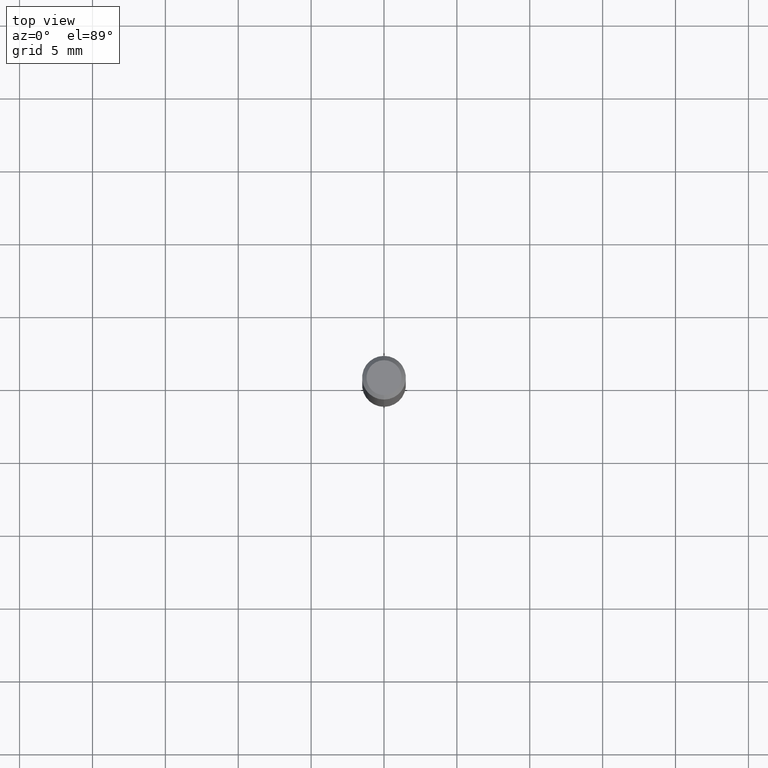
[diagram: clean part render]
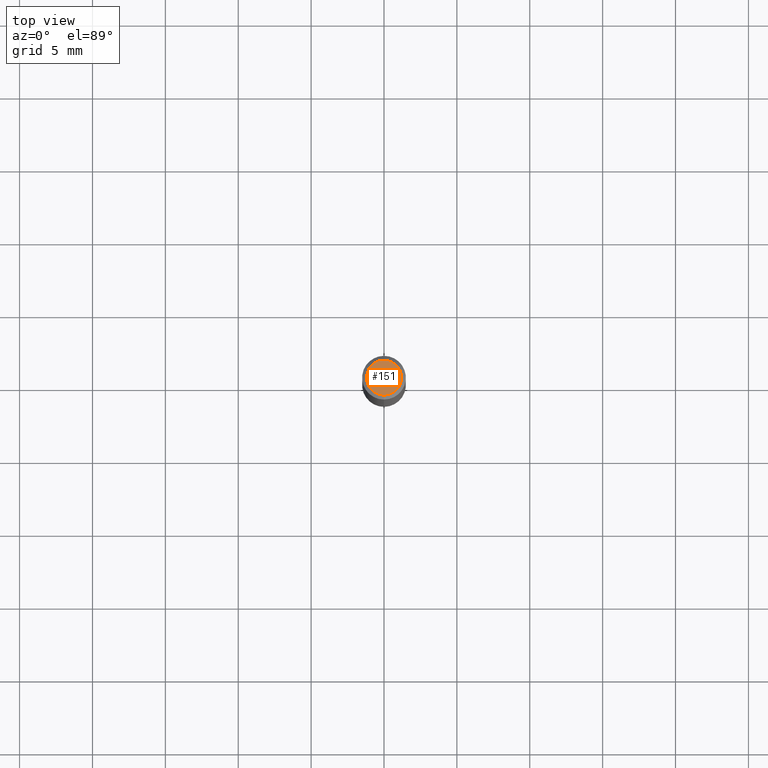
[diagram: same view with one face highlighted and labeled with its STEP entity id]
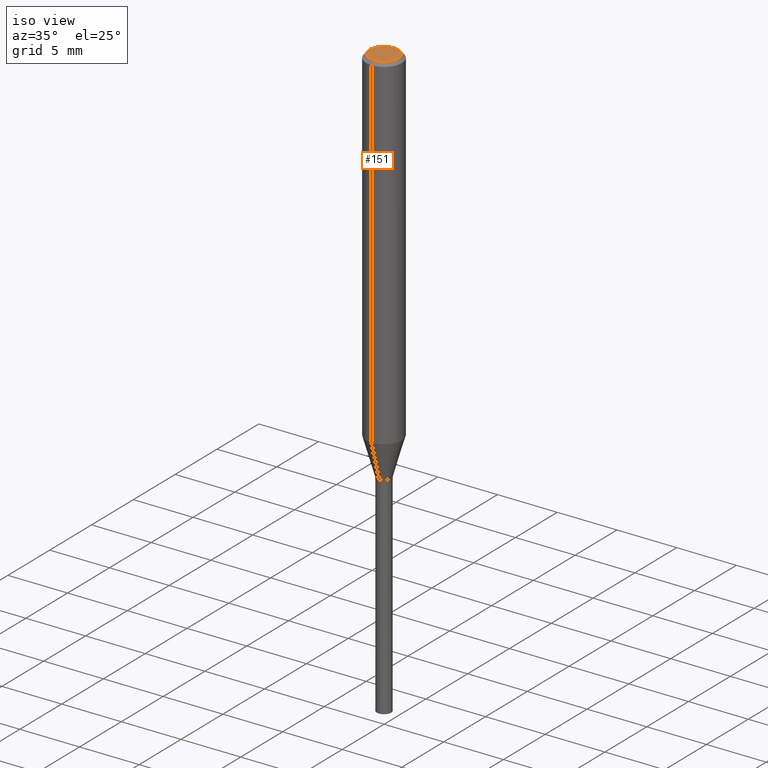
[diagram: same view with one face highlighted and labeled with its STEP entity id]
A machine part, top view. The second image highlights one B-rep face of the part: STEP entity #151.
A second angle (iso view) of the same face is appended — the face is thin or edge-on in the first view.
In plain terms, the highlighted planar face has unit normal (-0, 0, 1).
Its self-contained STEP definition (entity closure, byte-faithful):
#101=VERTEX_POINT('',#237);
#151=ADVANCED_FACE('',(#294),#295,.T.);
#157=VERTEX_POINT('',#301);
#173=EDGE_CURVE('',#101,#157,#319,.T.);
#191=EDGE_CURVE('',#157,#101,#338,.T.);
#237=CARTESIAN_POINT('',(0.0,1.2,0.0));
#294=FACE_OUTER_BOUND('',#457,.T.);
#295=PLANE('',#458);
#301=CARTESIAN_POINT('',(1.46952762458685E-016,-1.2,0.0));
#319=CIRCLE('',#487,1.2);
#338=CIRCLE('',#514,1.2);
#457=EDGE_LOOP('',(#621,#622));
#458=AXIS2_PLACEMENT_3D('',#623,#624,#625);
#487=AXIS2_PLACEMENT_3D('',#653,#654,#655);
#514=AXIS2_PLACEMENT_3D('',#674,#675,#676);
#621=ORIENTED_EDGE('',*,*,#173,.F.);
#622=ORIENTED_EDGE('',*,*,#191,.F.);
#623=CARTESIAN_POINT('',(0.0,0.6,0.0));
#624=DIRECTION('',(-0.0,0.0,1.0));
#625=DIRECTION('',(0.0,-1.0,0.0));
#653=CARTESIAN_POINT('',(0.0,0.0,0.0));
#654=DIRECTION('',(0.0,0.0,-1.0));
#655=DIRECTION('',(0.0,1.0,0.0));
#674=CARTESIAN_POINT('',(0.0,0.0,0.0));
#675=DIRECTION('',(0.0,0.0,-1.0));
#676=DIRECTION('',(0.0,1.0,0.0));